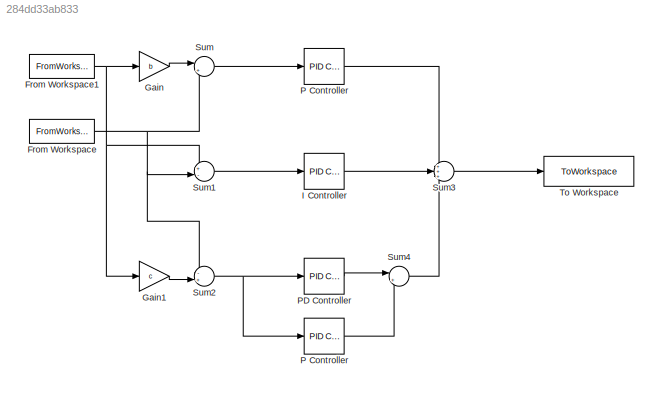
MODEL slx_284dd33ab833
KIND model
CONFIG AbsTol = auto
CONFIG EnableMultiTasking = off
CONFIG FixedStep = auto
CONFIG MaxStep = auto
CONFIG MinStep = auto
CONFIG RelTol = 1e-3
CONFIG SampleTimeConstraint = Unconstrained
CONFIG SolverName = VariableStepAuto
CONFIG StartTime = 0.0
CONFIG StopTime = t(end)
BLOCK [Reference]  P Controller   REF=slpidlib/PID Controller
  SourceBlock = slpidlib/PID Controller
  SourceType = PID 1dof
BLOCK [FromWorkspace] From Workspace
  SampleTime = Ts
  VariableName = [t' y']
BLOCK [FromWorkspace] From Workspace1
  SampleTime = Ts
  VariableName = [t' ysp']
BLOCK [Gain] Gain
  Gain = b
BLOCK [Gain] Gain1
  Gain = c
BLOCK [Reference] I Controller  REF=slpidlib/PID Controller
  SourceBlock = slpidlib/PID Controller
  SourceType = PID 1dof
BLOCK [Reference] P Controller  REF=slpidlib/PID Controller
  SourceBlock = slpidlib/PID Controller
  SourceType = PID 1dof
BLOCK [Reference] PD Controller  REF=slpidlib/PID Controller
  SourceBlock = slpidlib/PID Controller
  SourceType = PID 1dof
BLOCK [Sum] Sum
  Inputs = |+-
BLOCK [Sum] Sum1
  Inputs = +-|
BLOCK [Sum] Sum2
  Inputs = -+|
BLOCK [Sum] Sum3
  Inputs = +++
BLOCK [Sum] Sum4
  Inputs = |+-
BLOCK [ToWorkspace] To Workspace
  FixptAsFi = on
  MaxDataPoints = inf
  SampleTime = Ts
  Save2DSignal = 2-D array (concatenate along first dimension)
  VariableName = control
LINE  P Controller :1 -> Sum4:2
NET From Workspace1:1 -> Gain1:1, Gain:1, Sum1:1
NET From Workspace:1 -> Sum1:2, Sum2:1, Sum:2
LINE Gain1:1 -> Sum2:2
LINE Gain:1 -> Sum:1
LINE I Controller:1 -> Sum3:2
LINE P Controller:1 -> Sum3:1
LINE PD Controller:1 -> Sum4:1
LINE Sum1:1 -> I Controller:1
NET Sum2:1 ->  P Controller :1, PD Controller:1
LINE Sum3:1 -> To Workspace:1
LINE Sum4:1 -> Sum3:3
LINE Sum:1 -> P Controller:1
note: NET lines group one-source signal fan-out (src -> all destinations, sorted); 1:1 wires keep LINE
